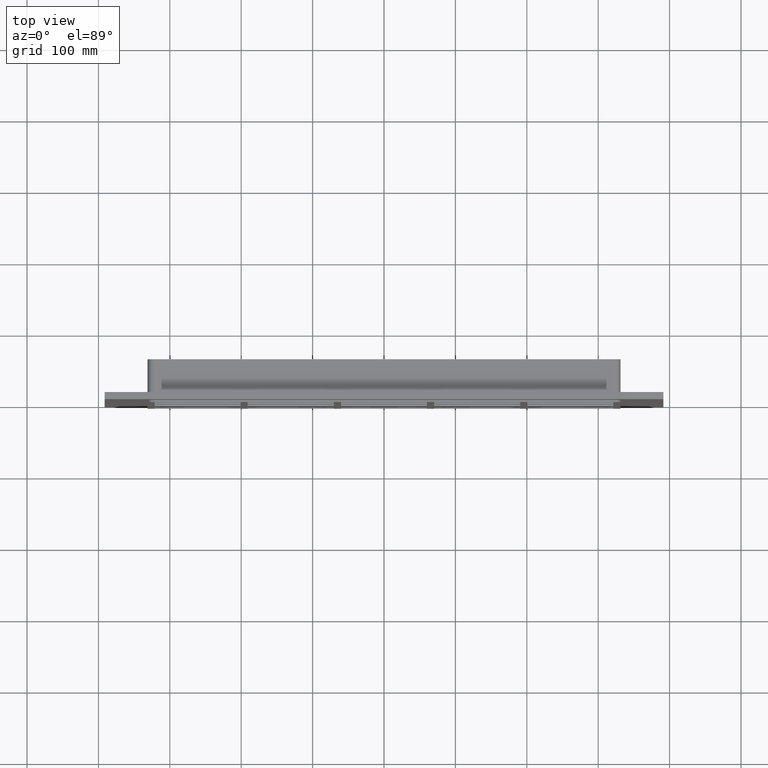
[diagram: clean part render]
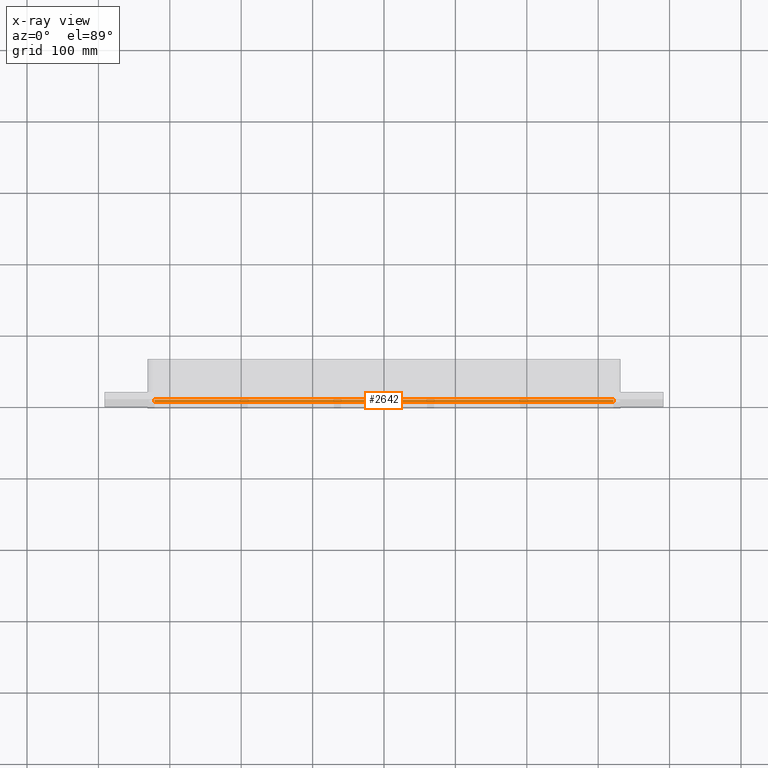
[diagram: x-ray — body ghosted, one internal face saturated and labeled with its STEP entity id]
A machine part, top view, then the same camera in x-ray: the body is ghosted and one INTERNAL B-rep face — a face not visible from any outside direction — is saturated and labeled: STEP entity #2642.
In plain terms, the highlighted planar face has unit normal (0, 0, 1).
Its self-contained STEP definition (entity closure, byte-faithful):
#1688=CARTESIAN_POINT('',(321.25,-3.0,269.25));
#1689=VERTEX_POINT('',#1688);
#1697=CARTESIAN_POINT('',(-321.25,-3.0,269.25));
#1698=VERTEX_POINT('',#1697);
#1699=CARTESIAN_POINT('',(321.25,-3.0,269.25));
#1700=DIRECTION('',(-1.0,0.0,0.0));
#1701=VECTOR('',#1700,642.5);
#1702=LINE('',#1699,#1701);
#1703=EDGE_CURVE('',#1689,#1698,#1702,.T.);
#2416=CARTESIAN_POINT('',(-321.25,0.0,269.25));
#2417=VERTEX_POINT('',#2416);
#2425=CARTESIAN_POINT('',(321.25,0.0,269.25));
#2426=VERTEX_POINT('',#2425);
#2427=CARTESIAN_POINT('',(321.25,0.0,269.25));
#2428=DIRECTION('',(-1.0,0.0,0.0));
#2429=VECTOR('',#2428,642.5);
#2430=LINE('',#2427,#2429);
#2431=EDGE_CURVE('',#2426,#2417,#2430,.T.);
#2554=CARTESIAN_POINT('',(321.25,0.0,269.25));
#2555=DIRECTION('',(0.0,-1.0,0.0));
#2556=VECTOR('',#2555,3.0);
#2557=LINE('',#2554,#2556);
#2558=EDGE_CURVE('',#2426,#1689,#2557,.T.);
#2626=CARTESIAN_POINT('',(-331.25,0.0,269.25));
#2627=DIRECTION('',(0.0,0.0,1.0));
#2628=DIRECTION('',(1.0,0.0,0.0));
#2629=AXIS2_PLACEMENT_3D('',#2626,#2627,#2628);
#2630=PLANE('',#2629);
#2631=ORIENTED_EDGE('',*,*,#2431,.T.);
#2632=CARTESIAN_POINT('',(-321.25,-3.0,269.25));
#2633=DIRECTION('',(0.0,1.0,0.0));
#2634=VECTOR('',#2633,3.0);
#2635=LINE('',#2632,#2634);
#2636=EDGE_CURVE('',#1698,#2417,#2635,.T.);
#2637=ORIENTED_EDGE('',*,*,#2636,.F.);
#2638=ORIENTED_EDGE('',*,*,#1703,.F.);
#2639=ORIENTED_EDGE('',*,*,#2558,.F.);
#2640=EDGE_LOOP('',(#2631,#2637,#2638,#2639));
#2641=FACE_OUTER_BOUND('',#2640,.T.);
#2642=ADVANCED_FACE('',(#2641),#2630,.T.);